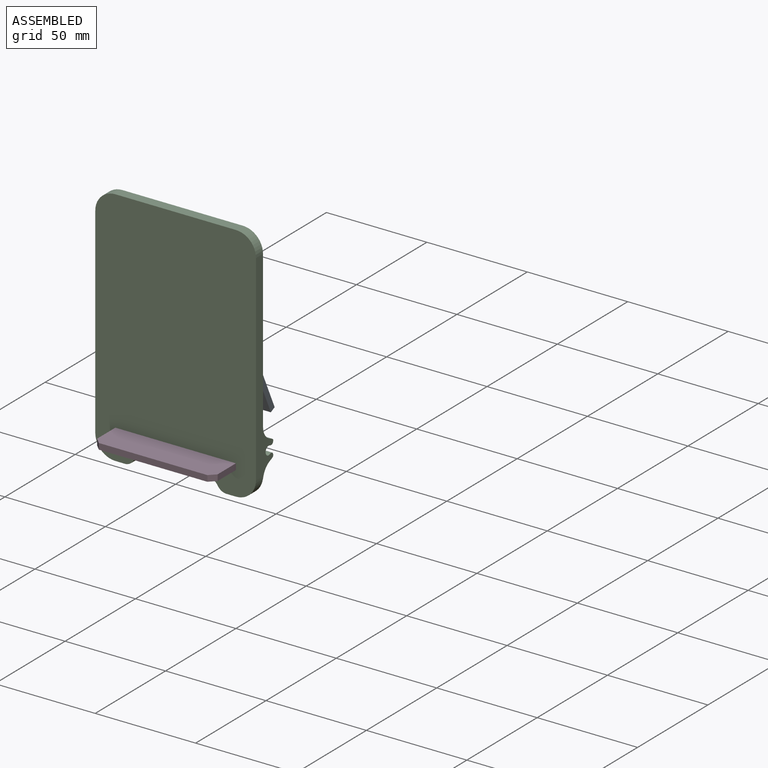
[diagram: assembled view]
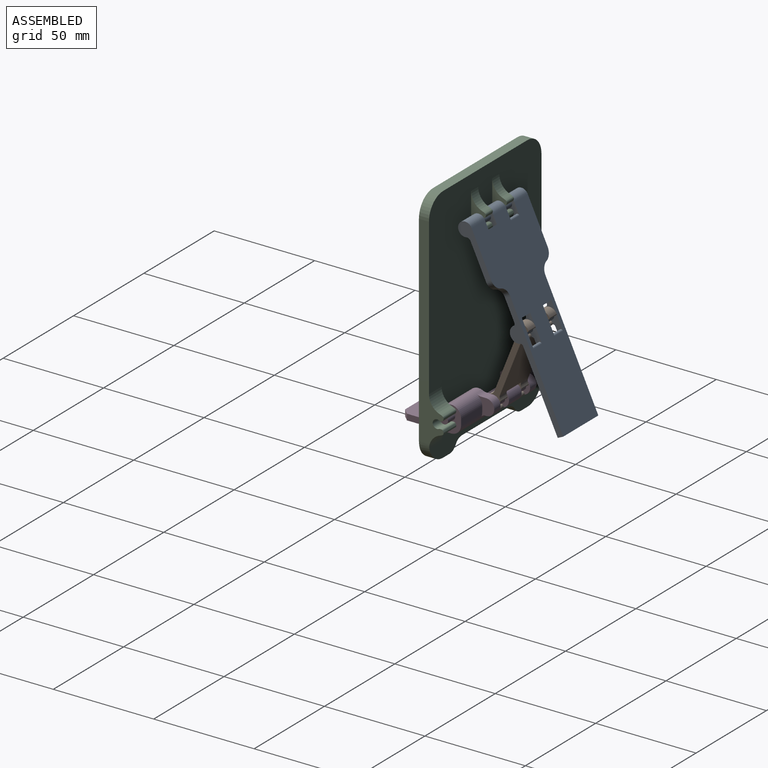
[diagram: assembled view, second angle]
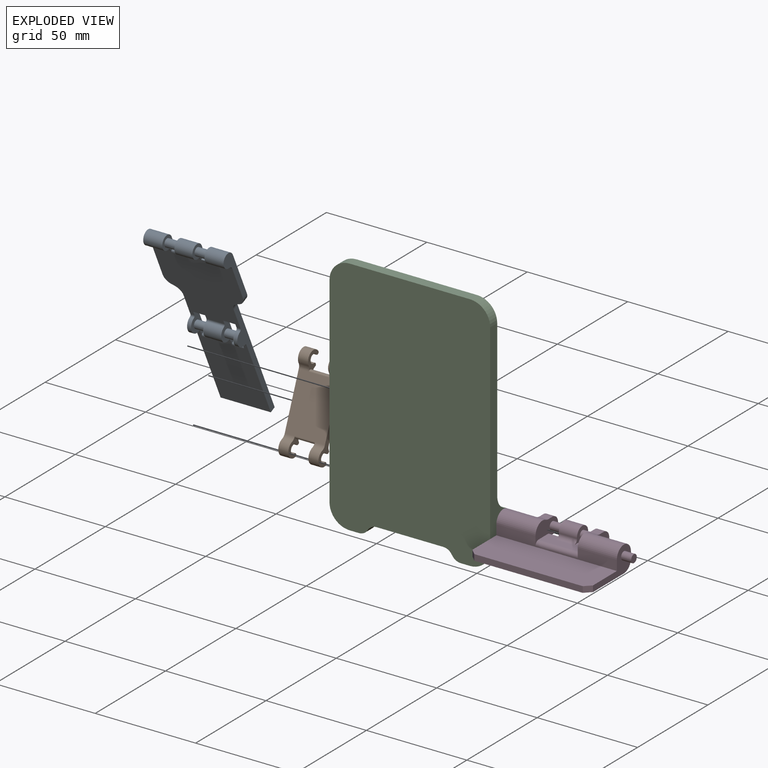
[diagram: exploded view]
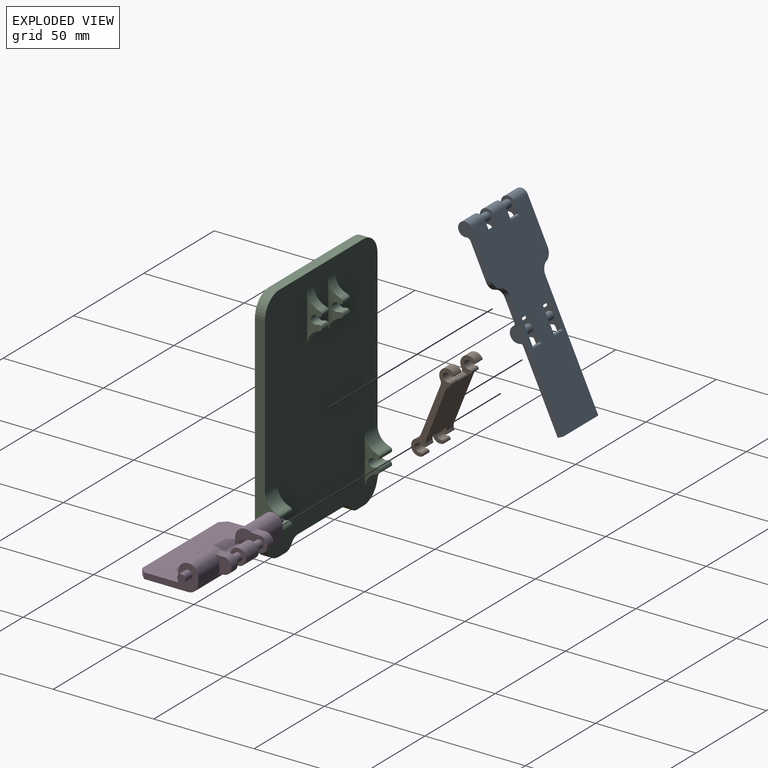
[diagram: exploded view, second angle]
ASSEMBLY  parts=4 mates=4
PART A: 51 faces, bbox 40x7.5x98.5 mm
  f0: cylinder r=3.5mm len=9mm, axis (-1,0,0), area 139.7mm2, adj f4,f17,f37,f40
  f1: cylinder r=3.5mm len=9.5mm, axis (-1,0,0), area 147.5mm2, adj f5,f11,f17,f39
  f2: cylinder r=4mm len=9mm, axis (-1,0,0), area 105.9mm2, adj f6,f8,f30,f33
  f3: cylinder r=4mm len=7.96mm, axis (-1,0,0), area 23.5mm2, adj f7,f9,f16,f32
  f4: cylinder r=2mm len=9mm, axis (-1,0,0), area 23.3mm2, adj f0,f13,f37,f40
  f5: cylinder r=2mm len=9.5mm, axis (-1,0,0), area 24.6mm2, adj f1,f11,f13,f39
  f6: cylinder r=1mm len=9mm, axis (-1,0,0), area 13.2mm2, adj f2,f19,f30,f33
  f7: cylinder r=1mm len=2mm, axis (-1,0,0), area 2.9mm2, adj f3,f16,f19,f32
  f8: cylinder r=1mm len=9mm, axis (-1,0,0), area 13.2mm2, adj f2,f13,f30,f33
  f9: cylinder r=1mm len=2mm, axis (-1,0,0), area 2.9mm2, adj f3,f13,f16,f32
  f10: cylinder r=3.5mm len=9.5mm, axis (-1,0,0), area 147.5mm2, adj f12,f17,f24,f36
  f11: plane 26.82x7mm, normal (1,0,0), area 101.1mm2, adj f1,f5,f13,f17,f22
  f12: plane 26.82x7mm, normal (-1,0,0), area 101.1mm2, adj f10,f13,f17,f23,f24
  f13: plane 40x39.08mm, normal (0,-1,0), area 1288.7mm2, adj f4,f5,f8,f9,f11,f12,f15,f16
  f14: cylinder r=4mm len=7.96mm, axis (-1,0,0), area 23.5mm2, adj f15,f25,f26,f29
  f15: plane 62x7.5mm, normal (1,0,0), area 215.5mm2, adj f13,f14,f17,f18,f19,f21,f25,f26
  f16: plane 62x7.5mm, normal (-1,0,0), area 215.5mm2, adj f3,f7,f9,f13,f17,f18,f19,f20
  f17: plane 95x40mm, normal (0,1,0), area 2572mm2, adj f0,f1,f10,f11,f12,f15,f16,f18
  f18: plane 25x3mm, normal (0,0,-1), area 75mm2, adj f15,f16,f17,f19
  f19: plane 40.68x25mm, normal (0,-1,0), area 982.3mm2, adj f6,f7,f15,f16,f18,f25,f29,f30
  f20: cylinder r=5mm len=4.84mm, axis (0,1,0), area 19.8mm2, adj f13,f16,f17,f23
  f21: cylinder r=5mm len=4.84mm, axis (0,1,0), area 19.8mm2, adj f13,f15,f17,f22
  f22: cylinder r=5mm len=4.84mm, axis (0,1,0), area 19.8mm2, adj f11,f13,f17,f21
  f23: cylinder r=5mm len=4.84mm, axis (0,1,0), area 19.8mm2, adj f12,f13,f17,f20
  f24: cylinder r=2mm len=9.5mm, axis (-1,0,0), area 24.6mm2, adj f10,f12,f13,f36
  f25: cylinder r=1mm len=2mm, axis (-1,0,0), area 2.9mm2, adj f14,f15,f19,f29
  f26: cylinder r=1mm len=2mm, axis (-1,0,0), area 2.9mm2, adj f13,f14,f15,f29
  f27: cylinder r=7mm len=6mm, axis (-1,0,0), area 19mm2, adj f13,f17,f29,f30
  f28: cylinder r=7mm len=6mm, axis (-1,0,0), area 5.4mm2, adj f29,f30,f44,f46
  f29: plane 14.84x7.5mm, normal (-1,0,0), area 57.5mm2, adj f13,f14,f17,f19,f25,f26,f27,f28
  f30: plane 14.84x7.5mm, normal (1,0,0), area 57.5mm2, adj f2,f6,f8,f13,f17,f19,f27,f28
  f31: cylinder r=7mm len=6mm, axis (1,0,0), area 19mm2, adj f13,f17,f32,f33
  f32: plane 14.84x7.5mm, normal (1,0,0), area 57.5mm2, adj f3,f7,f9,f13,f17,f19,f31,f34
  f33: plane 14.84x7.5mm, normal (-1,0,0), area 57.5mm2, adj f2,f6,f8,f13,f17,f19,f31,f34
  f34: cylinder r=7mm len=6mm, axis (1,0,0), area 5.4mm2, adj f32,f33,f43,f45
  f35: cylinder r=5.5mm len=6mm, axis (1,0,0), area 5.3mm2, adj f36,f37,f41,f42
  f36: plane 9.82x7mm, normal (1,0,0), area 34.5mm2, adj f10,f13,f17,f24,f35,f41,f42,f48
  f37: plane 9.82x7mm, normal (-1,0,0), area 34.5mm2, adj f0,f4,f13,f17,f35,f41,f42,f48
  f38: cylinder r=5.5mm len=6mm, axis (-1,0,0), area 19.8mm2, adj f13,f17,f39,f40
  f39: plane 8.98x7mm, normal (-1,0,0), area 33.7mm2, adj f1,f5,f13,f17,f38,f47
  f40: plane 8.98x7mm, normal (1,0,0), area 33.7mm2, adj f0,f4,f13,f17,f38,f47
  f41: cylinder r=1mm len=6mm, axis (1,0,0), area 8mm2, adj f13,f35,f36,f37
  f42: cylinder r=1mm len=6mm, axis (1,0,0), area 11.8mm2, adj f17,f35,f36,f37
  f43: cylinder r=1mm len=6mm, axis (1,0,0), area 11.3mm2, adj f17,f32,f33,f34
  f44: cylinder r=1mm len=6mm, axis (-1,0,0), area 11.3mm2, adj f17,f28,f29,f30
  f45: cylinder r=1mm len=6mm, axis (1,0,0), area 8.3mm2, adj f19,f32,f33,f34
  f46: cylinder r=1mm len=6mm, axis (-1,0,0), area 8.3mm2, adj f19,f28,f29,f30
  f47: cylinder r=2mm len=6mm, axis (-1,0,0), area 75.4mm2, adj f39,f40
  f48: cylinder r=2mm len=6mm, axis (-1,0,0), area 75.4mm2, adj f36,f37
  f49: cylinder r=2mm len=6mm, axis (-1,0,0), area 75.4mm2, adj f32,f33
  f50: cylinder r=2mm len=6mm, axis (-1,0,0), area 75.4mm2, adj f29,f30
PART B: 74 faces, bbox 20x6.8x46 mm
  f0: cylinder r=3mm len=5mm, axis (-1,0,0), area 13.1mm2, adj f7,f12,f15,f21
  f1: cylinder r=3mm len=5mm, axis (-1,0,0), area 13.1mm2, adj f6,f8,f14,f20
  f2: cylinder r=3mm len=5mm, axis (-1,0,0), area 13.1mm2, adj f5,f7,f11,f14
  f3: cylinder r=3mm len=5mm, axis (-1,0,0), area 13.1mm2, adj f6,f10,f15,f17
  f4: cylinder r=4mm len=5mm, axis (-1,0,0), area 0.3mm2, adj f7,f21,f50,f67
  f5: cylinder r=4mm len=5mm, axis (-1,0,0), area 0.3mm2, adj f2,f7,f11,f55
  f6: plane 46x6.78mm, normal (1,0,0), area 146.9mm2, adj f1,f3,f8,f9,f14,f15,f16,f17
  f7: plane 46x6.78mm, normal (-1,0,0), area 146.9mm2, adj f0,f2,f4,f5,f12,f13,f14,f15
  f8: cylinder r=4mm len=5mm, axis (-1,0,0), area 0.3mm2, adj f1,f6,f20,f53
  f9: cylinder r=4mm len=5mm, axis (-1,0,0), area 0.3mm2, adj f6,f10,f56,f68
  f10: plane 9.42x6.78mm, normal (-1,0,0), area 30.3mm2, adj f3,f9,f14,f15,f17,f18,f31,f32
  f11: plane 9.42x6.78mm, normal (1,0,0), area 30.3mm2, adj f2,f5,f13,f14,f15,f18,f28,f29
  f12: cylinder r=4mm len=7.06mm, axis (-1,0,0), area 63.1mm2, adj f0,f7,f21,f51
  f13: cylinder r=4mm len=7.06mm, axis (-1,0,0), area 63.1mm2, adj f7,f11,f54,f69
  f14: plane 27.28x20mm, normal (0,-1,0), area 544.4mm2, adj f1,f2,f6,f7,f10,f11,f20,f21
  f15: plane 27.28x20mm, normal (0,1,0), area 544.4mm2, adj f0,f3,f6,f7,f10,f11,f20,f21
  f16: cylinder r=4mm len=7.06mm, axis (-1,0,0), area 63.1mm2, adj f6,f20,f52,f66
  f17: cylinder r=4mm len=7.06mm, axis (-1,0,0), area 63.1mm2, adj f3,f6,f10,f57
  f18: cylinder r=4.5mm len=10mm, axis (-1,0,0), area 8.2mm2, adj f10,f11,f70,f71
  f19: cylinder r=4.5mm len=10mm, axis (-1,0,0), area 8.2mm2, adj f20,f21,f72,f73
  f20: plane 9.42x6.78mm, normal (-1,0,0), area 30.3mm2, adj f1,f8,f14,f15,f16,f19,f25,f26
  f21: plane 9.42x6.78mm, normal (1,0,0), area 30.3mm2, adj f0,f4,f12,f14,f15,f19,f22,f23
  f22: plane 5x0.28mm, normal (0,0,1), area 1.4mm2, adj f7,f21,f42,f61
  f23: plane 5x0.28mm, normal (0,0,-1), area 1.4mm2, adj f7,f21,f43,f60
  f24: cylinder r=2.15mm len=5mm, axis (-1,0,0), area 46.5mm2, adj f7,f21,f60,f61
  f25: cylinder r=2.15mm len=5mm, axis (-1,0,0), area 46.5mm2, adj f6,f20,f64,f65
  f26: plane 5x0.28mm, normal (0,0,-1), area 1.4mm2, adj f6,f20,f44,f64
  f27: plane 5x0.28mm, normal (0,0,1), area 1.4mm2, adj f6,f20,f45,f65
  f28: plane 5x0.28mm, normal (0,0,1), area 1.4mm2, adj f7,f11,f46,f59
  f29: plane 5x0.28mm, normal (0,0,-1), area 1.4mm2, adj f7,f11,f47,f58
  f30: cylinder r=2.15mm len=5mm, axis (-1,0,0), area 46.5mm2, adj f7,f11,f58,f59
  f31: cylinder r=2.15mm len=5mm, axis (-1,0,0), area 46.5mm2, adj f6,f10,f62,f63
  f32: plane 5x0.28mm, normal (0,0,-1), area 1.4mm2, adj f6,f10,f48,f62
  f33: plane 5x0.28mm, normal (0,0,1), area 1.4mm2, adj f6,f10,f49,f63
  f34: plane 5x0.15mm, normal (0,-0.92,0.39), area 0.8mm2, adj f6,f10,f49,f57
  f35: plane 5x0.15mm, normal (0,-0.92,-0.39), area 0.8mm2, adj f6,f10,f48,f56
  f36: plane 5x0.15mm, normal (0,-0.92,-0.39), area 0.8mm2, adj f7,f11,f47,f55
  f37: plane 5x0.15mm, normal (0,-0.92,0.39), area 0.8mm2, adj f7,f11,f46,f54
  f38: plane 5x0.15mm, normal (0,-0.92,0.39), area 0.8mm2, adj f6,f20,f45,f53
  f39: plane 5x0.15mm, normal (0,-0.92,-0.39), area 0.8mm2, adj f6,f20,f44,f52
  f40: plane 5x0.15mm, normal (0,-0.92,-0.39), area 0.8mm2, adj f7,f21,f43,f51
  f41: plane 5x0.15mm, normal (0,-0.92,0.39), area 0.8mm2, adj f7,f21,f42,f50
  f42: cylinder r=1mm len=5mm, axis (1,0,0), area 5.8mm2, adj f7,f21,f22,f41
  f43: cylinder r=1mm len=5mm, axis (1,0,0), area 5.8mm2, adj f7,f21,f23,f40
  f44: cylinder r=1mm len=5mm, axis (1,0,0), area 5.8mm2, adj f6,f20,f26,f39
  f45: cylinder r=1mm len=5mm, axis (1,0,0), area 5.8mm2, adj f6,f20,f27,f38
  f46: cylinder r=1mm len=5mm, axis (1,0,0), area 5.8mm2, adj f7,f11,f28,f37
  f47: cylinder r=1mm len=5mm, axis (1,0,0), area 5.8mm2, adj f7,f11,f29,f36
  f48: cylinder r=1mm len=5mm, axis (1,0,0), area 5.8mm2, adj f6,f10,f32,f35
  f49: cylinder r=1mm len=5mm, axis (1,0,0), area 5.8mm2, adj f6,f10,f33,f34
  f50: cylinder r=0.5mm len=5mm, axis (-1,0,0), area 3.2mm2, adj f4,f7,f21,f41
  f51: cylinder r=0.5mm len=5mm, axis (-1,0,0), area 3.2mm2, adj f7,f12,f21,f40
  f52: cylinder r=0.5mm len=5mm, axis (-1,0,0), area 3.2mm2, adj f6,f16,f20,f39
  f53: cylinder r=0.5mm len=5mm, axis (-1,0,0), area 3.2mm2, adj f6,f8,f20,f38
  f54: cylinder r=0.5mm len=5mm, axis (-1,0,0), area 3.2mm2, adj f7,f11,f13,f37
  f55: cylinder r=0.5mm len=5mm, axis (-1,0,0), area 3.2mm2, adj f5,f7,f11,f36
  f56: cylinder r=0.5mm len=5mm, axis (-1,0,0), area 3.2mm2, adj f6,f9,f10,f35
  f57: cylinder r=0.5mm len=5mm, axis (-1,0,0), area 3.2mm2, adj f6,f10,f17,f34
  f58: cylinder r=0.5mm len=5mm, axis (-1,0,0), area 1.5mm2, adj f7,f11,f29,f30
  f59: cylinder r=0.5mm len=5mm, axis (-1,0,0), area 1.5mm2, adj f7,f11,f28,f30
  f60: cylinder r=0.5mm len=5mm, axis (-1,0,0), area 1.5mm2, adj f7,f21,f23,f24
  f61: cylinder r=0.5mm len=5mm, axis (-1,0,0), area 1.5mm2, adj f7,f21,f22,f24
  f62: cylinder r=0.5mm len=5mm, axis (-1,0,0), area 1.5mm2, adj f6,f10,f31,f32
  f63: cylinder r=0.5mm len=5mm, axis (-1,0,0), area 1.5mm2, adj f6,f10,f31,f33
  f64: cylinder r=0.5mm len=5mm, axis (-1,0,0), area 1.5mm2, adj f6,f20,f25,f26
  f65: cylinder r=0.5mm len=5mm, axis (-1,0,0), area 1.5mm2, adj f6,f20,f25,f27
  f66: cylinder r=3mm len=5mm, axis (-1,0,0), area 13.1mm2, adj f6,f15,f16,f20
  f67: cylinder r=3mm len=5mm, axis (-1,0,0), area 13.1mm2, adj f4,f7,f14,f21
  f68: cylinder r=3mm len=5mm, axis (-1,0,0), area 13.1mm2, adj f6,f9,f10,f14
  f69: cylinder r=3mm len=5mm, axis (-1,0,0), area 13.1mm2, adj f7,f11,f13,f15
  f70: cylinder r=1mm len=10mm, axis (1,0,0), area 16mm2, adj f10,f11,f15,f18
  f71: cylinder r=1mm len=10mm, axis (-1,0,0), area 16mm2, adj f10,f11,f14,f18
  f72: cylinder r=1mm len=10mm, axis (1,0,0), area 16mm2, adj f14,f19,f20,f21
  f73: cylinder r=1mm len=10mm, axis (-1,0,0), area 16mm2, adj f15,f19,f20,f21
PART C: 82 faces, bbox 80x12.3x120 mm
  f0: plane 5x4.68mm, normal (0,0,-1), area 23.4mm2, adj f1,f2,f10,f14
  f1: plane 120x80mm, normal (0,1,0), area 8612mm2, adj f0,f3,f4,f5,f6,f7,f8,f9
  f2: plane 120x80mm, normal (0,-1,0), area 9304.3mm2, adj f0,f3,f4,f5,f6,f7,f8,f9
  f3: plane 100x12.31mm, normal (1,0,0), area 569.7mm2, adj f1,f2,f7,f10,f24,f25,f26,f27
  f4: plane 60x5mm, normal (0,0,1), area 300mm2, adj f1,f2,f7,f8
  f5: plane 100x12.31mm, normal (-1,0,0), area 569.7mm2, adj f1,f2,f8,f9,f37,f38,f39,f40
  f6: plane 5x4.68mm, normal (0,0,-1), area 23.4mm2, adj f1,f2,f9,f15
  f7: cylinder r=10mm len=10mm, axis (0,1,0), area 78.5mm2, adj f1,f2,f3,f4
  f8: cylinder r=10mm len=10mm, axis (0,-1,0), area 78.5mm2, adj f1,f2,f4,f5
  f9: cylinder r=10mm len=10mm, axis (0,1,0), area 78.8mm2, adj f1,f2,f5,f6,f74
  f10: cylinder r=10mm len=10mm, axis (0,-1,0), area 78.8mm2, adj f0,f1,f2,f3,f78
  f11: plane 33.32x5mm, normal (0,0,-1), area 166.6mm2, adj f1,f2,f12,f13
  f12: cylinder r=5mm len=5mm, axis (0,-1,0), area 26.2mm2, adj f1,f2,f11,f14
  f13: cylinder r=5mm len=5mm, axis (0,1,0), area 26.2mm2, adj f1,f2,f11,f15
  f14: cylinder r=5mm len=5mm, axis (0,-1,0), area 26.2mm2, adj f0,f1,f2,f12
  f15: cylinder r=5mm len=5mm, axis (0,1,0), area 26.2mm2, adj f1,f2,f6,f13
  f16: plane 24.74x7.31mm, normal (1,0,0), area 69.9mm2, adj f1,f18,f19,f20,f21,f22,f48,f49
  f17: plane 24.74x7.31mm, normal (-1,0,0), area 69.9mm2, adj f1,f18,f19,f20,f21,f22,f48,f49
  f18: cylinder r=5mm len=5mm, axis (-1,0,0), area 7.6mm2, adj f16,f17,f52,f80
  f19: plane 5x0.67mm, normal (0,0,1), area 3.4mm2, adj f16,f17,f53,f73
  f20: cylinder r=2.15mm len=5mm, axis (-1,0,0), area 44mm2, adj f16,f17,f72,f73
  f21: plane 5x0.67mm, normal (0,0,-1), area 3.4mm2, adj f16,f17,f50,f72
  f22: cylinder r=5mm len=5mm, axis (-1,0,0), area 7.6mm2, adj f16,f17,f51,f81
  f23: plane 24.74x7.31mm, normal (-1,0,0), area 69.9mm2, adj f1,f24,f25,f26,f27,f28,f44,f45
  f24: cylinder r=5mm len=9mm, axis (-1,0,0), area 13.6mm2, adj f3,f23,f60,f78
  f25: plane 9x0.67mm, normal (0,0,1), area 6.1mm2, adj f3,f23,f61,f71
  f26: cylinder r=2.15mm len=9mm, axis (-1,0,0), area 79.2mm2, adj f3,f23,f70,f71
  f27: plane 9x0.67mm, normal (0,0,-1), area 6.1mm2, adj f3,f23,f58,f70
  f28: cylinder r=5mm len=9mm, axis (-1,0,0), area 13.6mm2, adj f3,f23,f59,f79
  f29: plane 24.74x7.31mm, normal (-1,0,0), area 69.9mm2, adj f1,f31,f32,f33,f34,f35,f46,f47
  f30: plane 24.74x7.31mm, normal (1,0,0), area 69.9mm2, adj f1,f31,f32,f33,f34,f35,f46,f47
  f31: cylinder r=5mm len=5mm, axis (1,0,0), area 7.6mm2, adj f29,f30,f57,f76
  f32: plane 5x0.67mm, normal (0,0,1), area 3.4mm2, adj f29,f30,f56,f69
  f33: cylinder r=2.15mm len=5mm, axis (1,0,0), area 44mm2, adj f29,f30,f68,f69
  f34: plane 5x0.67mm, normal (0,0,-1), area 3.4mm2, adj f29,f30,f55,f68
  f35: cylinder r=5mm len=5mm, axis (1,0,0), area 7.6mm2, adj f29,f30,f54,f77
  f36: plane 24.74x7.31mm, normal (1,0,0), area 69.9mm2, adj f1,f37,f38,f39,f40,f41,f42,f43
  f37: cylinder r=5mm len=9mm, axis (1,0,0), area 13.6mm2, adj f5,f36,f65,f74
  f38: plane 9x0.67mm, normal (0,0,1), area 6.1mm2, adj f5,f36,f64,f67
  f39: cylinder r=2.15mm len=9mm, axis (1,0,0), area 79.2mm2, adj f5,f36,f66,f67
  f40: plane 9x0.67mm, normal (0,0,-1), area 6.1mm2, adj f5,f36,f63,f66
  f41: cylinder r=5mm len=9mm, axis (1,0,0), area 13.6mm2, adj f5,f36,f62,f75
  f42: plane 9x0.47mm, normal (0,0.93,0.38), area 4.5mm2, adj f5,f36,f64,f65
  f43: plane 9x0.47mm, normal (0,0.93,-0.38), area 4.5mm2, adj f5,f36,f62,f63
  f44: plane 9x0.47mm, normal (0,0.93,0.38), area 4.5mm2, adj f3,f23,f60,f61
  f45: plane 9x0.47mm, normal (0,0.93,-0.38), area 4.5mm2, adj f3,f23,f58,f59
  f46: plane 5x0.47mm, normal (0,0.93,0.38), area 2.5mm2, adj f29,f30,f56,f57
  f47: plane 5x0.47mm, normal (0,0.93,-0.38), area 2.5mm2, adj f29,f30,f54,f55
  f48: plane 5x0.47mm, normal (0,0.93,0.38), area 2.5mm2, adj f16,f17,f52,f53
  f49: plane 5x0.47mm, normal (0,0.93,-0.38), area 2.5mm2, adj f16,f17,f50,f51
  f50: cylinder r=1mm len=5mm, axis (1,0,0), area 5.9mm2, adj f16,f17,f21,f49
  f51: cylinder r=1mm len=5mm, axis (-1,0,0), area 6.7mm2, adj f16,f17,f22,f49
  f52: cylinder r=1mm len=5mm, axis (-1,0,0), area 6.7mm2, adj f16,f17,f18,f48
  f53: cylinder r=1mm len=5mm, axis (1,0,0), area 5.9mm2, adj f16,f17,f19,f48
  f54: cylinder r=1mm len=5mm, axis (1,0,0), area 6.7mm2, adj f29,f30,f35,f47
  f55: cylinder r=1mm len=5mm, axis (1,0,0), area 5.9mm2, adj f29,f30,f34,f47
  f56: cylinder r=1mm len=5mm, axis (1,0,0), area 5.9mm2, adj f29,f30,f32,f46
  f57: cylinder r=1mm len=5mm, axis (1,0,0), area 6.7mm2, adj f29,f30,f31,f46
  f58: cylinder r=1mm len=9mm, axis (1,0,0), area 10.6mm2, adj f3,f23,f27,f45
  f59: cylinder r=1mm len=9mm, axis (-1,0,0), area 12.1mm2, adj f3,f23,f28,f45
  f60: cylinder r=1mm len=9mm, axis (-1,0,0), area 12.1mm2, adj f3,f23,f24,f44
  f61: cylinder r=1mm len=9mm, axis (1,0,0), area 10.6mm2, adj f3,f23,f25,f44
  f62: cylinder r=1mm len=9mm, axis (1,0,0), area 12.1mm2, adj f5,f36,f41,f43
  f63: cylinder r=1mm len=9mm, axis (1,0,0), area 10.6mm2, adj f5,f36,f40,f43
  f64: cylinder r=1mm len=9mm, axis (1,0,0), area 10.6mm2, adj f5,f36,f38,f42
  f65: cylinder r=1mm len=9mm, axis (1,0,0), area 12.1mm2, adj f5,f36,f37,f42
  f66: cylinder r=1mm len=9mm, axis (1,0,0), area 4.3mm2, adj f5,f36,f39,f40
  f67: cylinder r=1mm len=9mm, axis (1,0,0), area 4.3mm2, adj f5,f36,f38,f39
  f68: cylinder r=1mm len=5mm, axis (1,0,0), area 2.4mm2, adj f29,f30,f33,f34
  f69: cylinder r=1mm len=5mm, axis (1,0,0), area 2.4mm2, adj f29,f30,f32,f33
  f70: cylinder r=1mm len=9mm, axis (-1,0,0), area 4.3mm2, adj f3,f23,f26,f27
  f71: cylinder r=1mm len=9mm, axis (-1,0,0), area 4.3mm2, adj f3,f23,f25,f26
  f72: cylinder r=1mm len=5mm, axis (-1,0,0), area 2.4mm2, adj f16,f17,f20,f21
  f73: cylinder r=1mm len=5mm, axis (-1,0,0), area 2.4mm2, adj f16,f17,f19,f20
  f74: cylinder r=8mm len=9mm, axis (1,0,0), area 90.4mm2, adj f1,f5,f9,f36,f37
  f75: cylinder r=8mm len=9mm, axis (1,0,0), area 90.6mm2, adj f1,f5,f36,f41
  f76: cylinder r=8mm len=7.61mm, axis (1,0,0), area 50.3mm2, adj f1,f29,f30,f31
  f77: cylinder r=8mm len=7.61mm, axis (1,0,0), area 50.3mm2, adj f1,f29,f30,f35
  f78: cylinder r=8mm len=9mm, axis (-1,0,0), area 90.4mm2, adj f1,f3,f10,f23,f24
  f79: cylinder r=8mm len=9mm, axis (-1,0,0), area 90.6mm2, adj f1,f3,f23,f28
  f80: cylinder r=8mm len=7.61mm, axis (-1,0,0), area 50.3mm2, adj f1,f16,f17,f18
  f81: cylinder r=8mm len=7.61mm, axis (-1,0,0), area 50.3mm2, adj f1,f16,f17,f22
PART D: 42 faces, bbox 70x36x13 mm
  f0: cylinder r=2mm len=6mm, axis (-1,0,0), area 75.4mm2, adj f18,f26
  f1: cylinder r=5mm len=19.5mm, axis (-1,0,0), area 281.1mm2, adj f7,f9,f10,f17,f18,f38
  f2: plane 15x3mm, normal (0,1,0), area 45mm2, adj f6,f8,f12,f21
  f3: plane 60x20mm, normal (0,0,1), area 1191mm2, adj f4,f6,f7,f9,f40,f41
  f4: plane 54x3mm, normal (0,-1,0), area 162mm2, adj f3,f5,f40,f41
  f5: plane 60x25mm, normal (0,0,-1), area 1491mm2, adj f4,f6,f7,f21,f40,f41
  f6: plane 27x13mm, normal (1,0,0), area 152.3mm2, adj f2,f3,f5,f8,f9,f21,f27,f40
  f7: plane 27x13mm, normal (-1,0,0), area 152.3mm2, adj f1,f3,f5,f9,f10,f21,f29,f41
  f8: cylinder r=5mm len=19.5mm, axis (-1,0,0), area 281.1mm2, adj f2,f6,f9,f12,f13,f39
  f9: plane 60x5mm, normal (0,-1,0), area 205.5mm2, adj f1,f3,f6,f7,f8,f13,f18,f35
  f10: plane 15x3mm, normal (0,1,0), area 45mm2, adj f1,f7,f17,f21
  f11: plane 4.5x2.64mm, normal (0,0,1), area 11.9mm2, adj f12,f13,f14,f39
  f12: plane 9.64x8.82mm, normal (1,0,0), area 44mm2, adj f2,f8,f11,f14,f15,f21,f34,f39
  f13: plane 16x10.14mm, normal (-1,0,0), area 96.9mm2, adj f8,f9,f11,f14,f15,f21,f22,f23
  f14: cylinder r=4mm len=8mm, axis (-1,0,0), area 56.5mm2, adj f11,f12,f13,f15
  f15: plane 4.5x0.68mm, normal (0,0,-1), area 3mm2, adj f12,f13,f14,f34
  f16: plane 4.5x2.64mm, normal (0,0,1), area 11.9mm2, adj f17,f18,f19,f38
  f17: plane 9.64x8.82mm, normal (-1,0,0), area 44mm2, adj f1,f10,f16,f19,f20,f21,f33,f38
  f18: plane 16x10.14mm, normal (1,0,0), area 96.9mm2, adj f0,f1,f9,f16,f19,f20,f21,f22
  f19: cylinder r=4mm len=8mm, axis (1,0,0), area 56.5mm2, adj f16,f17,f18,f20
  f20: plane 4.5x0.68mm, normal (0,0,-1), area 3mm2, adj f17,f18,f19,f33
  f21: cylinder r=5mm len=60mm, axis (1,0,0), area 424.1mm2, adj f2,f5,f6,f7,f10,f12,f13,f17
  f22: plane 21x6.97mm, normal (0,0,1), area 119.8mm2, adj f13,f18,f25,f26,f32,f35,f36,f37
  f23: cylinder r=2mm len=6mm, axis (-1,0,0), area 75.4mm2, adj f13,f25
  f24: cylinder r=4mm len=9mm, axis (-1,0,0), area 176.6mm2, adj f25,f26,f31,f32
  f25: plane 9.98x9.12mm, normal (1,0,0), area 39.5mm2, adj f21,f22,f23,f24,f31,f32,f36
  f26: plane 9.98x9.12mm, normal (-1,0,0), area 39.5mm2, adj f0,f21,f22,f24,f31,f32,f37
  f27: cylinder r=2mm len=5mm, axis (-1,0,0), area 62.8mm2, adj f6,f28
  f28: plane 4x4mm, normal (1,0,0), area 12.6mm2, adj f27
  f29: cylinder r=2mm len=5mm, axis (1,0,0), area 62.8mm2, adj f7,f30
  f30: plane 4x4mm, normal (-1,0,0), area 12.6mm2, adj f29
  f31: cylinder r=2mm len=9mm, axis (-1,0,0), area 22.4mm2, adj f21,f24,f25,f26
  f32: cylinder r=2mm len=9mm, axis (-1,0,0), area 29.8mm2, adj f22,f24,f25,f26
  f33: cylinder r=2mm len=4.5mm, axis (1,0,0), area 10.2mm2, adj f17,f18,f20,f21
  f34: cylinder r=2mm len=4.5mm, axis (1,0,0), area 10.2mm2, adj f12,f13,f15,f21
  f35: cylinder r=2mm len=21mm, axis (-1,0,0), area 66mm2, adj f9,f13,f18,f22
  f36: cylinder r=1mm len=6mm, axis (1,0,0), area 10.2mm2, adj f13,f21,f22,f25
  f37: cylinder r=1mm len=6mm, axis (1,0,0), area 10.2mm2, adj f18,f21,f22,f26
  f38: cylinder r=5mm len=4.5mm, axis (-1,0,0), area 10.1mm2, adj f1,f16,f17,f18
  f39: cylinder r=5mm len=4.5mm, axis (-1,0,0), area 10.1mm2, adj f8,f11,f12,f13
  f40: plane 3x3mm, normal (0.71,-0.71,0), area 12.7mm2, adj f3,f4,f5,f6
  f41: plane 3x3mm, normal (-0.71,-0.71,0), area 12.7mm2, adj f3,f4,f5,f7
PLACE A rot(axis=(1,0,0),25.2deg) t=(0,12.17,89.59)mm
PLACE B rot(axis=(0,0.19,0.98),180deg) t=(0,22.99,25.77)mm
PLACE C t=(0,0,8.1)mm
PLACE D t=(0,9,0.1)mm
MATE revolute B.f30 <-> D.f0  axis (1,0,0) through (7.5,16,8.1)mm
MATE revolute A.f47 <-> C.f18  axis (-1,0,0) through (7.5,9,88.1)mm
MATE revolute B.f24 <-> A.f2  axis (1,0,0) through (7.5,29.98,43.43)mm
MATE revolute D.f1 <-> C.f24  axis (-1,0,0) through (30,9,8.1)mm
